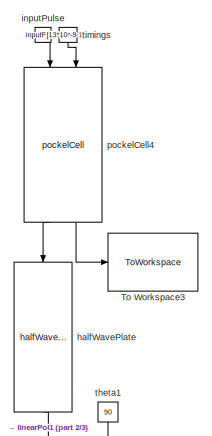
[diagram: root canvas - part 1/3, top left region]
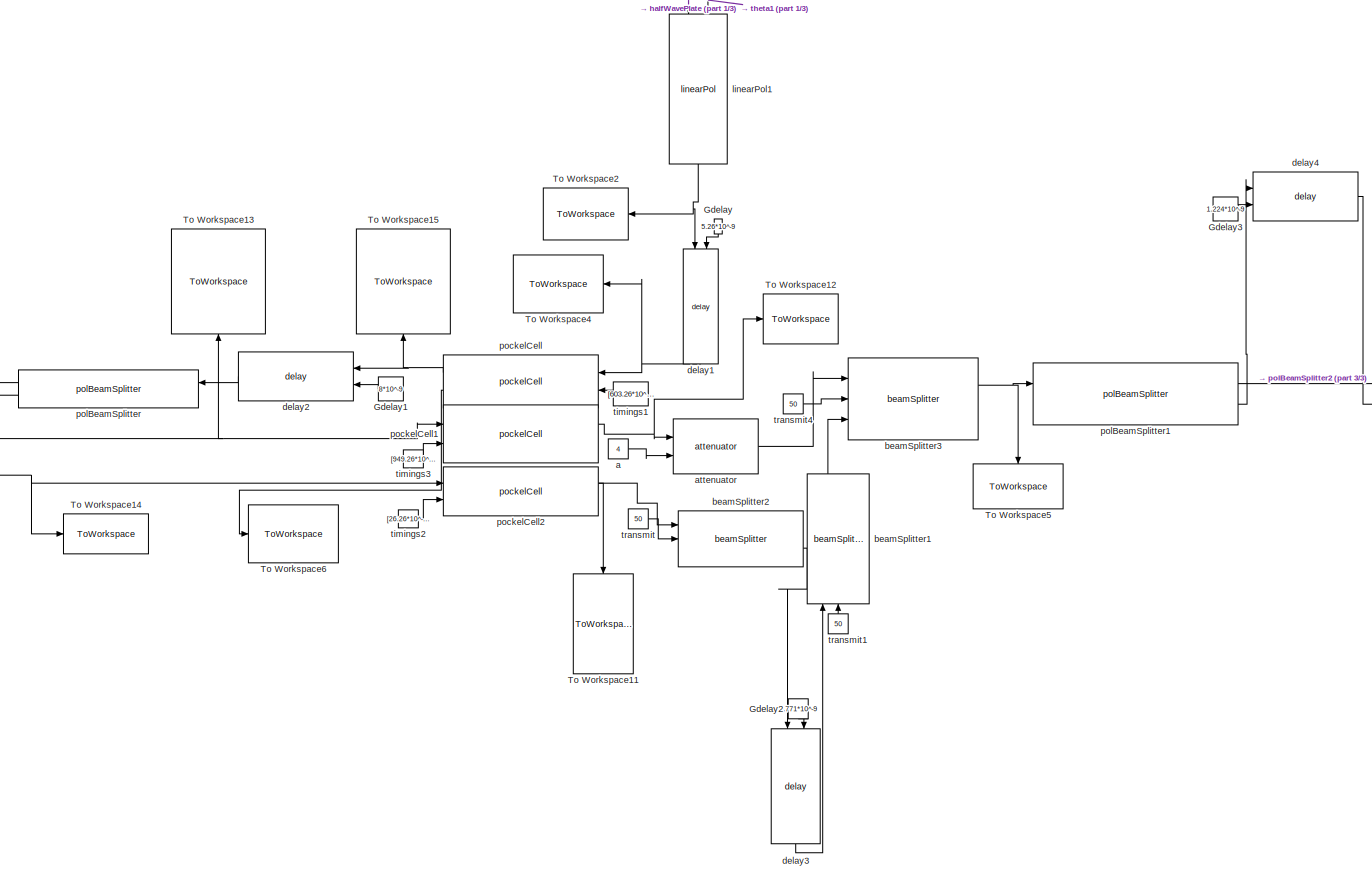
[diagram: root canvas - part 2/3, bottom left region]
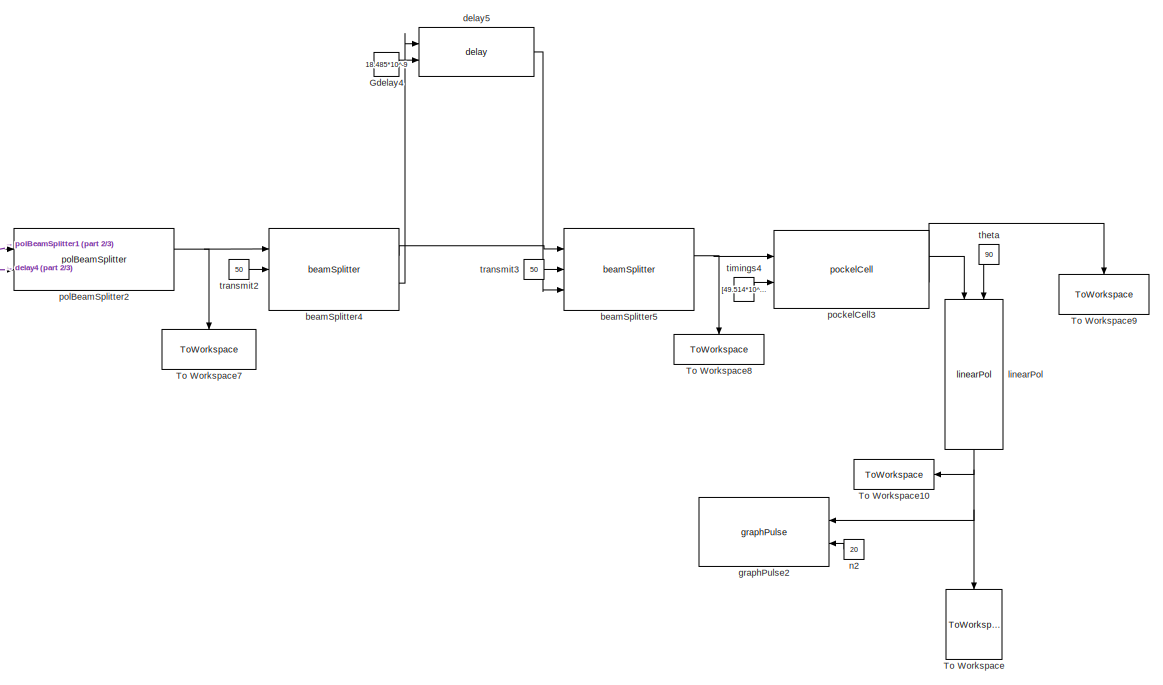
[diagram: root canvas - part 3/3, bottom right region]
MODEL slx_e9e8e3179163
KIND model
BLOCK [Constant] Gdelay
  Value = 5.26*10^-9
BLOCK [Constant] Gdelay1
  Value = 8*10^-9
BLOCK [Constant] Gdelay2
  Value = 4.771*10^-9
BLOCK [Constant] Gdelay3
  Value = 1.224*10^-9
BLOCK [Constant] Gdelay4
  Value = 18.485*10^-9
BLOCK [ToWorkspace] To Workspace
  MaxDataPoints = inf
  Ports = [1]
  SampleTime = -1
  VariableName = simout
BLOCK [ToWorkspace] To Workspace10
  MaxDataPoints = inf
  Ports = [1]
  SampleTime = -1
  VariableName = OutputPulse
BLOCK [ToWorkspace] To Workspace11
  MaxDataPoints = inf
  Ports = [1]
  SampleTime = -1
  VariableName = vertPCOut
BLOCK [ToWorkspace] To Workspace12
  MaxDataPoints = inf
  Ports = [1]
  SampleTime = -1
  VariableName = horizPCOut
BLOCK [ToWorkspace] To Workspace13
  MaxDataPoints = inf
  Ports = [1]
  SampleTime = -1
  VariableName = horizPCIn
BLOCK [ToWorkspace] To Workspace14
  MaxDataPoints = inf
  Ports = [1]
  SampleTime = -1
  VariableName = vertPCIn
BLOCK [ToWorkspace] To Workspace15
  MaxDataPoints = inf
  Ports = [1]
  SampleTime = -1
  VariableName = initialPCOut
BLOCK [ToWorkspace] To Workspace2
  MaxDataPoints = inf
  Ports = [1]
  SampleTime = -1
  VariableName = InitialEOMOut
BLOCK [ToWorkspace] To Workspace3
  MaxDataPoints = inf
  Ports = [1]
  SampleTime = -1
  VariableName = EOMTimings
BLOCK [ToWorkspace] To Workspace4
  MaxDataPoints = inf
  Ports = [1]
  SampleTime = -1
  VariableName = PockelCellInput
BLOCK [ToWorkspace] To Workspace5
  MaxDataPoints = inf
  Ports = [1]
  SampleTime = -1
  VariableName = CombinedPCOut
BLOCK [ToWorkspace] To Workspace6
  MaxDataPoints = inf
  Ports = [1]
  SampleTime = -1
  VariableName = PockelCellTimings
BLOCK [ToWorkspace] To Workspace7
  MaxDataPoints = inf
  Ports = [1]
  SampleTime = -1
  VariableName = PBSDelayOut
BLOCK [ToWorkspace] To Workspace8
  MaxDataPoints = inf
  Ports = [1]
  SampleTime = -1
  VariableName = BSDelayOut
BLOCK [ToWorkspace] To Workspace9
  MaxDataPoints = inf
  Ports = [1]
  SampleTime = -1
  VariableName = FinalPCTiming
BLOCK [Constant] a
  Value = 4
BLOCK [Reference] attenuator  REF=opticalComponentLibrary/attenuator
  Ports = [2, 1]
  SourceBlock = opticalComponentLibrary/attenuator
  SourceType = SubSystem
BLOCK [Reference] beamSplitter1  REF=opticalComponentLibrary/beamSplitter
  Ports = [3, 2]
  SourceBlock = opticalComponentLibrary/beamSplitter
  SourceType = SubSystem
BLOCK [Reference] beamSplitter2  REF=opticalComponentLibrary/beamSplitter
  Ports = [3, 2]
  SourceBlock = opticalComponentLibrary/beamSplitter
  SourceType = SubSystem
BLOCK [Reference] beamSplitter3  REF=opticalComponentLibrary/beamSplitter
  Ports = [3, 2]
  SourceBlock = opticalComponentLibrary/beamSplitter
  SourceType = SubSystem
BLOCK [Reference] beamSplitter4  REF=opticalComponentLibrary/beamSplitter
  Ports = [3, 2]
  SourceBlock = opticalComponentLibrary/beamSplitter
  SourceType = SubSystem
BLOCK [Reference] beamSplitter5  REF=opticalComponentLibrary/beamSplitter
  Ports = [3, 2]
  SourceBlock = opticalComponentLibrary/beamSplitter
  SourceType = SubSystem
BLOCK [Reference] delay1  REF=opticalComponentLibrary/delay
  Ports = [2, 1]
  SourceBlock = opticalComponentLibrary/delay
  SourceType = SubSystem
BLOCK [Reference] delay2  REF=opticalComponentLibrary/delay
  Ports = [2, 1]
  SourceBlock = opticalComponentLibrary/delay
  SourceType = SubSystem
BLOCK [Reference] delay3  REF=opticalComponentLibrary/delay
  Ports = [2, 1]
  SourceBlock = opticalComponentLibrary/delay
  SourceType = SubSystem
BLOCK [Reference] delay4  REF=opticalComponentLibrary/delay
  Ports = [2, 1]
  SourceBlock = opticalComponentLibrary/delay
  SourceType = SubSystem
BLOCK [Reference] delay5  REF=opticalComponentLibrary/delay
  Ports = [2, 1]
  SourceBlock = opticalComponentLibrary/delay
  SourceType = SubSystem
BLOCK [Reference] graphPulse2  REF=opticalComponentLibrary/graphPulse
  Ports = [2]
  SourceBlock = opticalComponentLibrary/graphPulse
  SourceType = SubSystem
BLOCK [Reference] halfWavePlate  REF=opticalComponentLibrary/halfWavePlate
  Ports = [1, 1]
  SourceBlock = opticalComponentLibrary/halfWavePlate
  SourceType = SubSystem
BLOCK [Constant] inputPulse
  Value = inputPulse
BLOCK [Reference] linearPol  REF=opticalComponentLibrary/linearPol
  Ports = [2, 1]
  SourceBlock = opticalComponentLibrary/linearPol
  SourceType = SubSystem
BLOCK [Reference] linearPol1  REF=opticalComponentLibrary/linearPol
  Ports = [2, 1]
  SourceBlock = opticalComponentLibrary/linearPol
  SourceType = SubSystem
BLOCK [Constant] n2
  Value = 20
BLOCK [Reference] pockelCell  REF=opticalComponentLibrary/pockelCell
  Ports = [2, 2]
  SourceBlock = opticalComponentLibrary/pockelCell
  SourceType = SubSystem
BLOCK [Reference] pockelCell1  REF=opticalComponentLibrary/pockelCell
  Ports = [2, 2]
  SourceBlock = opticalComponentLibrary/pockelCell
  SourceType = SubSystem
BLOCK [Reference] pockelCell2  REF=opticalComponentLibrary/pockelCell
  Ports = [2, 2]
  SourceBlock = opticalComponentLibrary/pockelCell
  SourceType = SubSystem
BLOCK [Reference] pockelCell3  REF=opticalComponentLibrary/pockelCell
  Ports = [2, 2]
  SourceBlock = opticalComponentLibrary/pockelCell
  SourceType = SubSystem
BLOCK [Reference] pockelCell4  REF=opticalComponentLibrary/pockelCell
  Ports = [2, 2]
  SourceBlock = opticalComponentLibrary/pockelCell
  SourceType = SubSystem
BLOCK [Reference] polBeamSplitter  REF=opticalComponentLibrary/polBeamSplitter
  Ports = [2, 2]
  SourceBlock = opticalComponentLibrary/polBeamSplitter
  SourceType = SubSystem
BLOCK [Reference] polBeamSplitter1  REF=opticalComponentLibrary/polBeamSplitter
  Ports = [2, 2]
  SourceBlock = opticalComponentLibrary/polBeamSplitter
  SourceType = SubSystem
BLOCK [Reference] polBeamSplitter2  REF=opticalComponentLibrary/polBeamSplitter
  Ports = [2, 2]
  SourceBlock = opticalComponentLibrary/polBeamSplitter
  SourceType = SubSystem
BLOCK [Constant] theta
  Value = 90
BLOCK [Constant] theta1
  Value = 90
BLOCK [Constant] timings
  Value = [13*10^-9 169*10^-9 351*10^-9  598*10^-9 780*10^-9 936*10^-9]
BLOCK [Constant] timings1
  Value = [603.26*10^-9 785.26*10^-9 941.26*10^-9]
BLOCK [Constant] timings2
  Value = [26.26*10^-9]
BLOCK [Constant] timings3
  Value = [949.26*10^-9]
BLOCK [Constant] timings4
  Value = [49.514*10^-9 206.739*10^-9 370.254*10^-9 611.26*10^-9 811.744*10^-9 968.969*10^-9]
BLOCK [Constant] transmit
  Value = 50
BLOCK [Constant] transmit1
  Value = 50
BLOCK [Constant] transmit2
  Value = 50
BLOCK [Constant] transmit3
  Value = 50
BLOCK [Constant] transmit4
  Value = 50
LINE Gdelay1:1 -> delay2:2
LINE Gdelay2:1 -> delay3:2
LINE Gdelay3:1 -> delay4:2
LINE Gdelay4:1 -> delay5:2
LINE Gdelay:1 -> delay1:2
LINE a:1 -> attenuator:2
LINE attenuator:1 -> beamSplitter3:1
LINE beamSplitter1:1 -> beamSplitter3:3
LINE beamSplitter2:2 -> delay3:1
NET beamSplitter3:1 -> To Workspace5:1, polBeamSplitter1:1
LINE beamSplitter4:1 -> beamSplitter5:1
LINE beamSplitter4:2 -> delay5:1
NET beamSplitter5:1 -> To Workspace8:1, pockelCell3:1
NET delay1:1 -> To Workspace4:1, pockelCell:1
LINE delay2:1 -> polBeamSplitter:1
LINE delay3:1 -> beamSplitter1:1
LINE delay4:1 -> polBeamSplitter2:2
LINE delay5:1 -> beamSplitter5:3
LINE halfWavePlate:1 -> linearPol1:1
LINE inputPulse:1 -> pockelCell4:1
NET linearPol1:1 -> To Workspace2:1, delay1:1
NET linearPol:1 -> To Workspace10:1, To Workspace:1, graphPulse2:1
LINE n2:1 -> graphPulse2:2
NET pockelCell1:1 -> To Workspace12:1, attenuator:1
NET pockelCell2:1 -> To Workspace11:1, beamSplitter2:1
LINE pockelCell3:1 -> linearPol:1
LINE pockelCell3:2 -> To Workspace9:1
LINE pockelCell4:1 -> halfWavePlate:1
LINE pockelCell4:2 -> To Workspace3:1
NET pockelCell:1 -> To Workspace15:1, delay2:1
LINE pockelCell:2 -> To Workspace6:1
LINE polBeamSplitter1:1 -> polBeamSplitter2:1
LINE polBeamSplitter1:2 -> delay4:1
NET polBeamSplitter2:1 -> To Workspace7:1, beamSplitter4:1
NET polBeamSplitter:1 -> To Workspace13:1, pockelCell1:1
NET polBeamSplitter:2 -> To Workspace14:1, pockelCell2:1
LINE theta1:1 -> linearPol1:2
LINE theta:1 -> linearPol:2
LINE timings1:1 -> pockelCell:2
LINE timings2:1 -> pockelCell2:2
LINE timings3:1 -> pockelCell1:2
LINE timings4:1 -> pockelCell3:2
LINE timings:1 -> pockelCell4:2
LINE transmit1:1 -> beamSplitter1:2
LINE transmit2:1 -> beamSplitter4:2
LINE transmit3:1 -> beamSplitter5:2
LINE transmit4:1 -> beamSplitter3:2
LINE transmit:1 -> beamSplitter2:2
note: NET lines group one-source signal fan-out (src -> all destinations, sorted); 1:1 wires keep LINE
